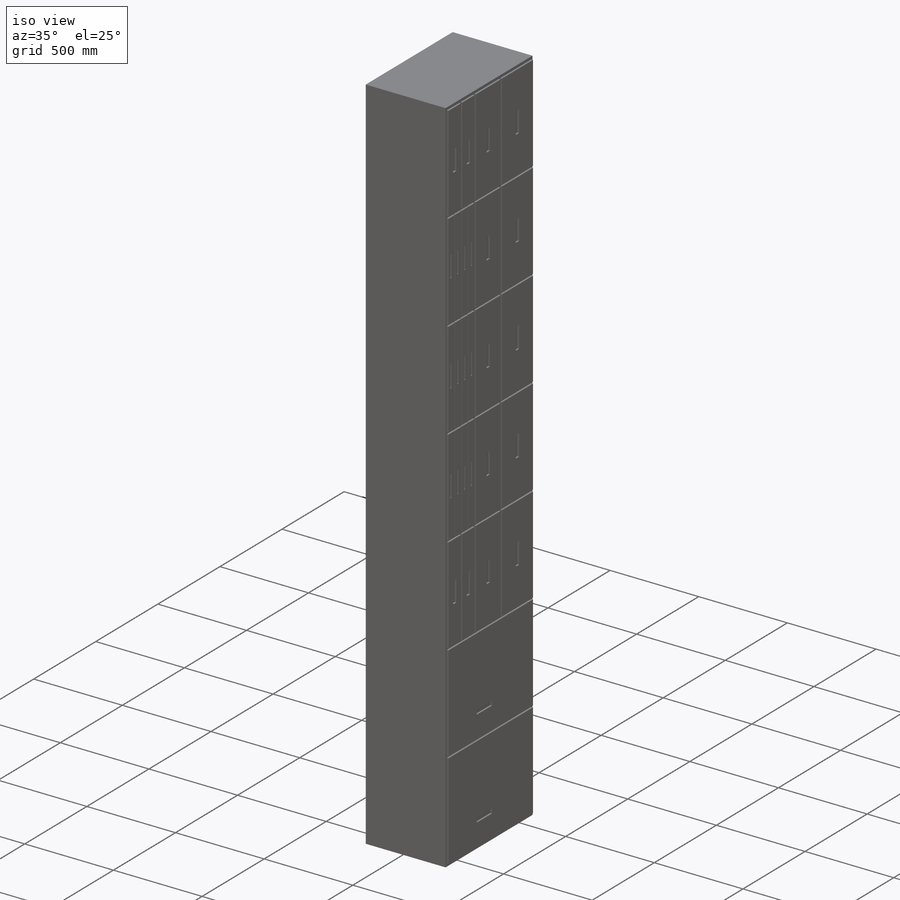
[diagram: iso view]
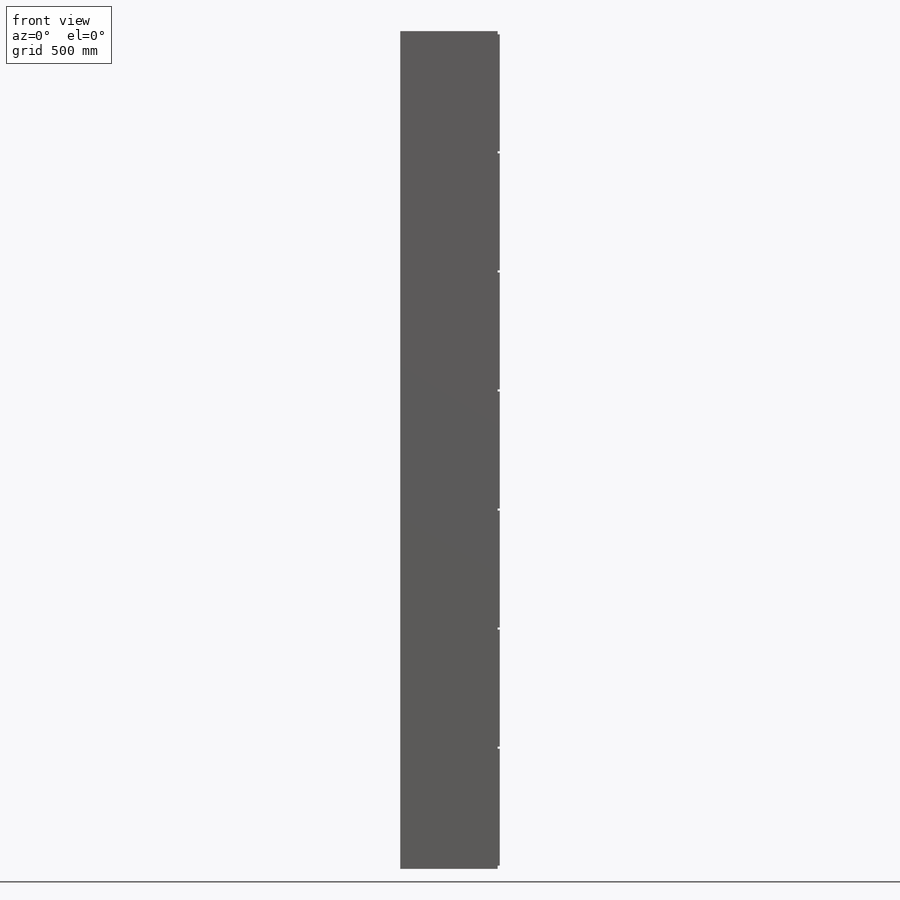
[diagram: front view]
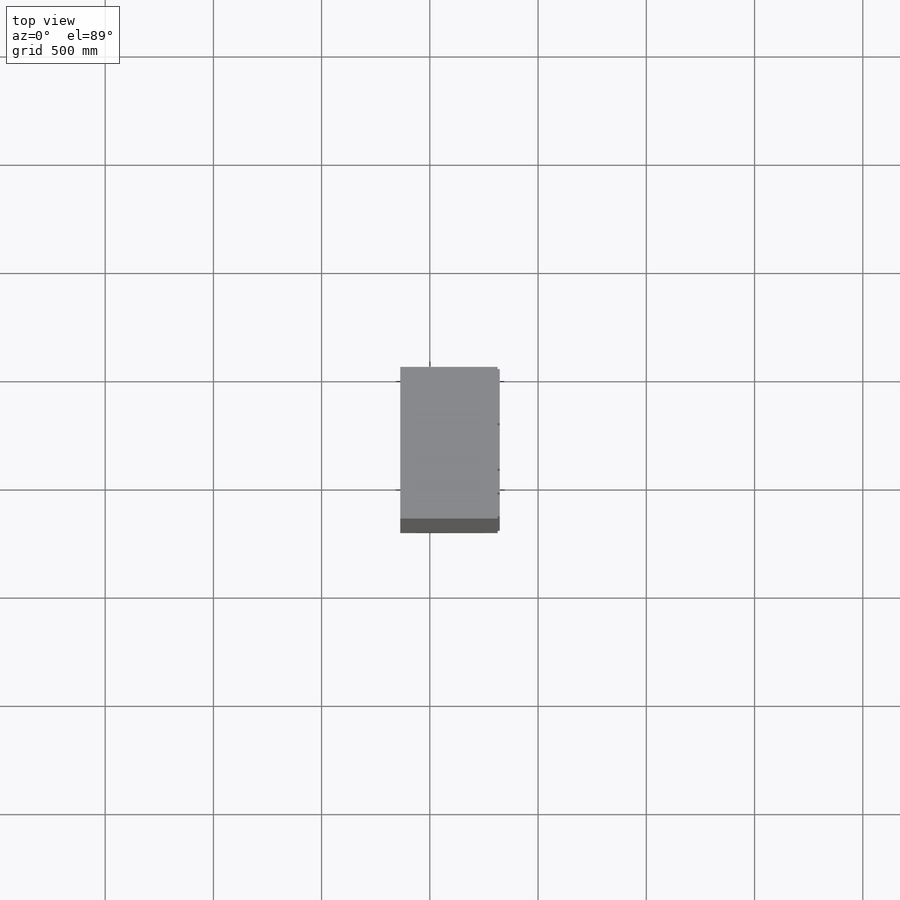
[diagram: top view]
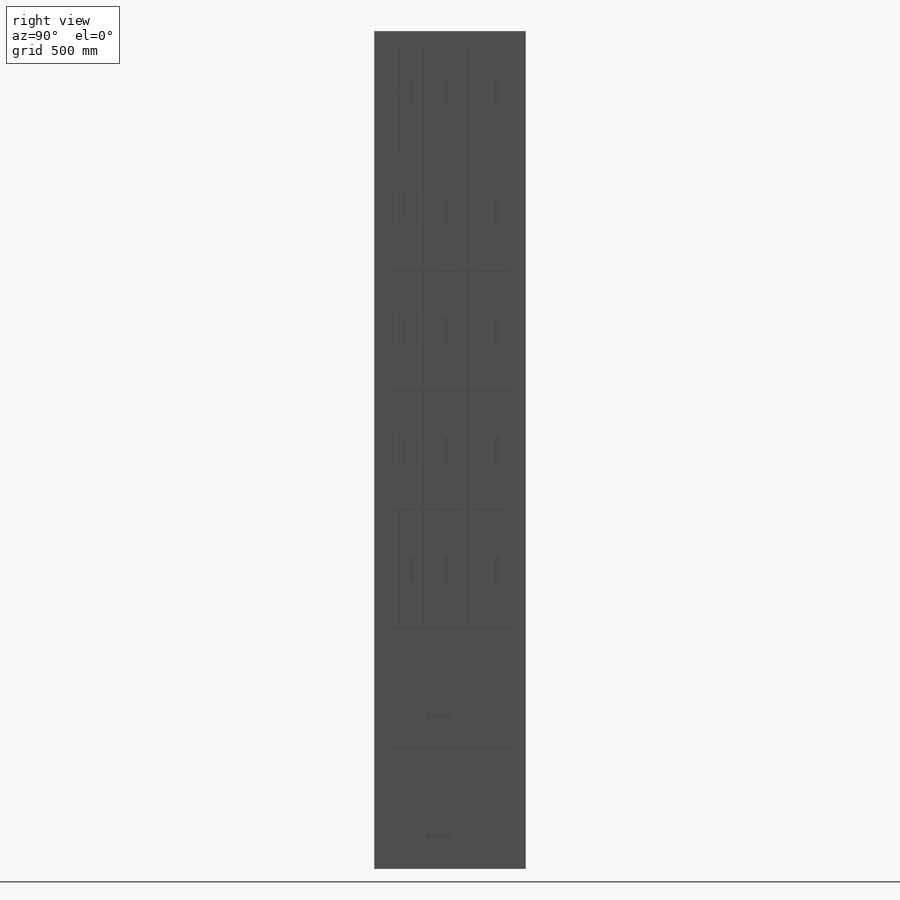
[diagram: right view]
SOLIDWORKS PART (.sldprt)
format: sldprt  version: not decoded by parser v0  size: 668,160 bytes
history: native  units: mm
features: sketch x4, extrude x2, material x1 (+12 scaffold rows collapsed)
feature tree (19):
  scaffold x12  (default folders/planes/origin — collapsed)
  material  "Material <not specified>"
  sketch  "Sketch1"  dims[c1.D1=~47.614232mm c1.D2=~175.381183mm c2.D1=400.0mm c2.D2=3870.0mm c2.D3=400.0mm c2.D4=400.0mm c2.D5=2465.0mm c2.D6=2917.63mm c3.D1=450.0mm]
  extrude  "Boss-Extrude1"  Depth=700mm
  sketch  "Sketch3"  dims[c1.D1=~577.34444mm c1.D2=~706.147625mm c2.D1=470.0mm c2.D2=~12.557121mm c2.D3=~71.886381mm c3.D2=40.0mm c3.D3=20.0mm c3.D4=375.0mm c3.D6=20.0mm c3.D7=760.0mm c3.D5=470.0mm c3.D8=470.0mm c3.D9=470.0mm c3.D10=5.0mm c3.D11=5.0mm c3.D12=5.0mm c3.D13=10.0mm c3.D1=~384.319867mm c4.D2=~743.632053mm c4.D1=540.0mm c5.D2=20.0mm c5.D3=15.0mm c5.D4=~25.802409mm c5.D5=~121.072842mm c6.D2=10.0mm c6.D5=10.0mm c6.D6=10.0mm c6.D7=10.0mm c6.D8=10.0mm c6.D9=15.0mm c6.D4=250.0mm c6.D10=10.0mm c6.D11=10.0mm c6.D12=10.0mm c6.D13=10.0mm c6.D14=540.0mm c6.D15=540.0mm c6.D16=540.0mm c6.D17=540.0mm c6.D18=540.0mm c6.D19=10.0mm c6.D20=10.0mm c6.D21=10.0mm c7.D6=540.0mm c7.D7=~174.17902mm c8.D6=10.0mm c8.D7=200.0mm c8.D8=540.0mm c8.D21=~78.93646mm c9.D8=540.0mm c9.D21=~37.844612mm c10.D8=100.0mm c10.D21=100.0mm c10.D22=10.0mm c10.D23=10.0mm c10.D24=~158.16757mm c10.D25=~42.670539mm c11.D24=120.0mm c11.D25=26.0mm c11.D26=210.0mm c11.D27=37.0mm c11.D28=540.0mm c11.D29=200.0mm c12.D28=540.0mm c12.D29=~51.360802mm c13.D28=50.0mm c13.D29=10.0mm c13.D30=50.0mm c13.D12=37.0mm c13.D13=26.0mm c13.D14=26.0mm c13.D16=26.0mm c13.D17=87.0mm c13.D18=112.0mm c13.D9=120.0mm c14.D29=~9.528826mm c14.D9=10.0mm c15.D29=20.0mm c15.D31=50.0mm c15.D34=~266.418131mm c15.D30=4.0 c15.D19=4.0 c15.D20=3.0 c15.D28=2.0 c15.D32=4.0 c15.D33=3.0]
  extrude  "Boss-Extrude3"  Depth=10mm
  sketch  "Sketch4"  dims[D1=~775.557508mm]
  sketch  "Sketch5"
decode coverage: 5 of 6 modeling features carry decoded parameters
note: ~ marks probable driven/reference dimensions
note: suppression state not decoded; provenance and decode notes live in map.json
